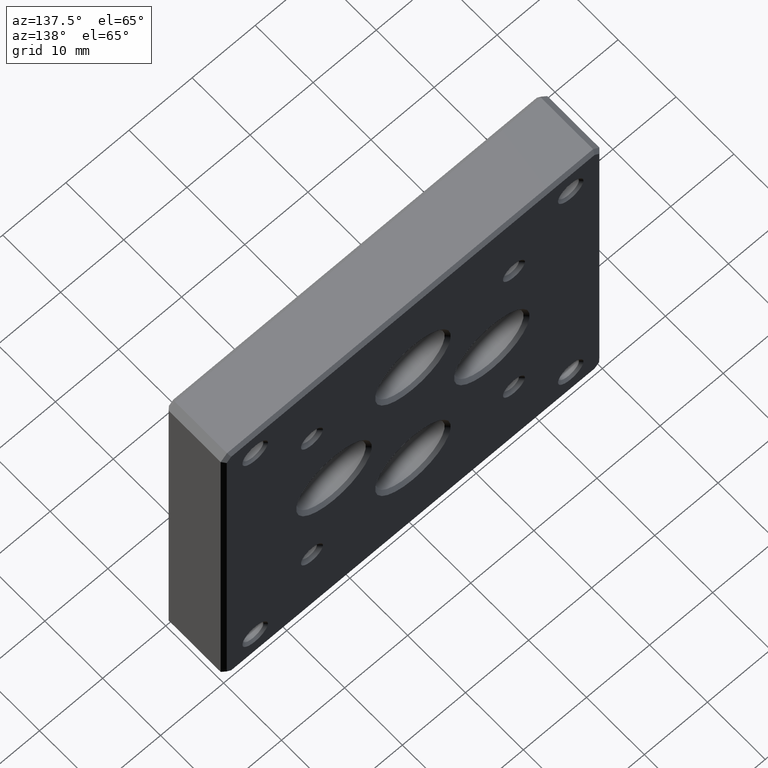
[diagram: clean part render]
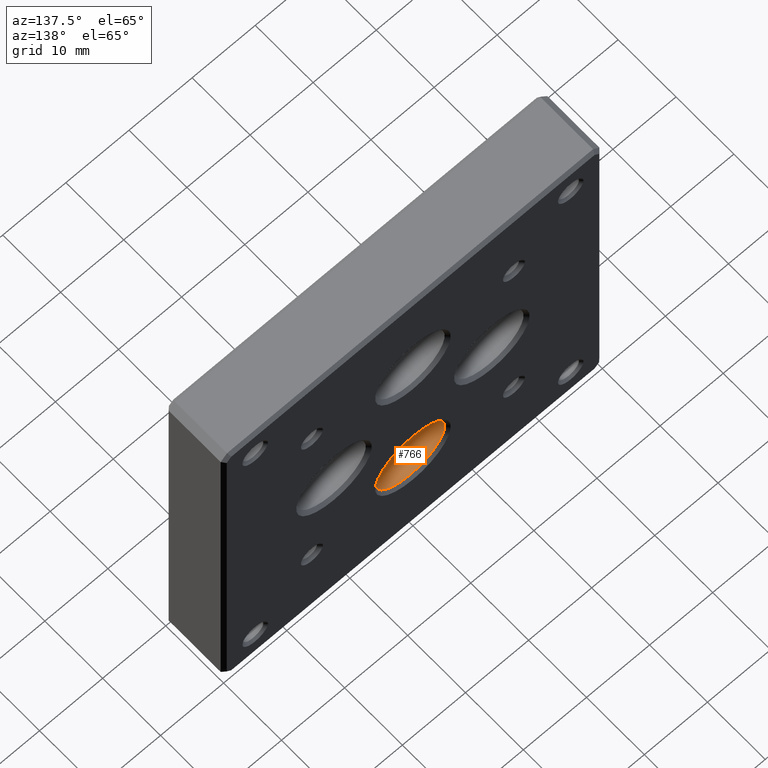
[diagram: same view with one face highlighted and labeled with its STEP entity id]
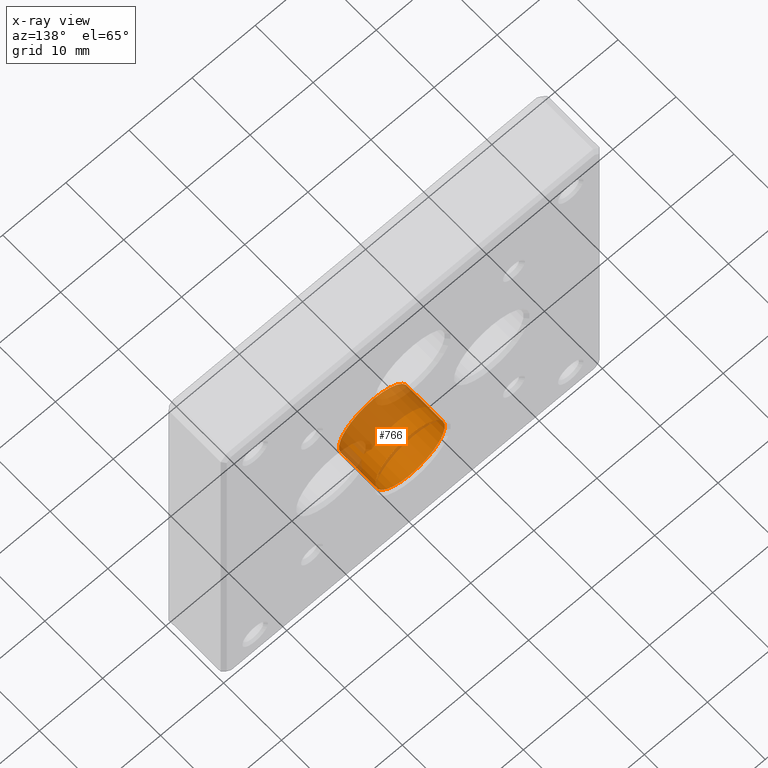
[diagram: x-ray of the same camera — body ghosted, the highlighted face saturated]
A machine part, auxiliary view. The second image highlights one B-rep face of the part: STEP entity #766.
The next image is the same camera in x-ray: the body ghosted, the highlighted face saturated — about 45% of this face is hidden behind the body in this view.
In plain terms, the highlighted cylindrical surface (bore or boss wall) has radius 5.5 mm, axis along (-0, 1, -0).
Its self-contained STEP definition (entity closure, byte-faithful):
#55 = EDGE_CURVE ( 'NONE', #1299, #1299, #1062, .T. ) ;
#128 = FACE_OUTER_BOUND ( 'NONE', #1054, .T. ) ;
#139 = EDGE_CURVE ( 'NONE', #1041, #1041, #1261, .T. ) ;
#206 = CARTESIAN_POINT ( 'NONE',  ( 3.469446951953614189E-15, 9.499999999999998224, -6.999999999999999112 ) ) ;
#230 = CYLINDRICAL_SURFACE ( 'NONE', #1084, 5.499999999999997335 ) ;
#280 = CARTESIAN_POINT ( 'NONE',  ( 3.469446951953614189E-15, 9.499999999999998224, -12.49999999999999645 ) ) ;
#461 = DIRECTION ( 'NONE',  ( 0.000000000000000000, 0.000000000000000000, 1.000000000000000000 ) ) ;
#480 = DIRECTION ( 'NONE',  ( -0.000000000000000000, 1.000000000000000000, -0.000000000000000000 ) ) ;
#608 = ORIENTED_EDGE ( 'NONE', *, *, #139, .F. ) ;
#714 = DIRECTION ( 'NONE',  ( 0.000000000000000000, 0.000000000000000000, 1.000000000000000000 ) ) ;
#766 = ADVANCED_FACE ( 'NONE', ( #128, #859 ), #230, .F. ) ;
#843 = EDGE_LOOP ( 'NONE', ( #1104 ) ) ;
#859 = FACE_OUTER_BOUND ( 'NONE', #843, .T. ) ;
#889 = DIRECTION ( 'NONE',  ( 0.000000000000000000, 0.000000000000000000, 1.000000000000000000 ) ) ;
#906 = AXIS2_PLACEMENT_3D ( 'NONE', #280, #1244, #889 ) ;
#1041 = VERTEX_POINT ( 'NONE', #1268 ) ;
#1054 = EDGE_LOOP ( 'NONE', ( #608 ) ) ;
#1062 = CIRCLE ( 'NONE', #906, 5.499999999999998224 ) ;
#1084 = AXIS2_PLACEMENT_3D ( 'NONE', #1209, #480, #714 ) ;
#1104 = ORIENTED_EDGE ( 'NONE', *, *, #55, .T. ) ;
#1177 = DIRECTION ( 'NONE',  ( -0.000000000000000000, 1.000000000000000000, -0.000000000000000000 ) ) ;
#1209 = CARTESIAN_POINT ( 'NONE',  ( 3.469446951953614189E-15, 10.00000000000000000, -12.49999999999999645 ) ) ;
#1244 = DIRECTION ( 'NONE',  ( -0.000000000000000000, 1.000000000000000000, -0.000000000000000000 ) ) ;
#1261 = CIRCLE ( 'NONE', #1409, 5.499999999999996447 ) ;
#1268 = CARTESIAN_POINT ( 'NONE',  ( 3.469446951953614189E-15, 3.200000000000003286, -7.000000000000000888 ) ) ;
#1299 = VERTEX_POINT ( 'NONE', #206 ) ;
#1409 = AXIS2_PLACEMENT_3D ( 'NONE', #1541, #1177, #461 ) ;
#1541 = CARTESIAN_POINT ( 'NONE',  ( 3.469446951953614189E-15, 3.200000000000003286, -12.49999999999999645 ) ) ;